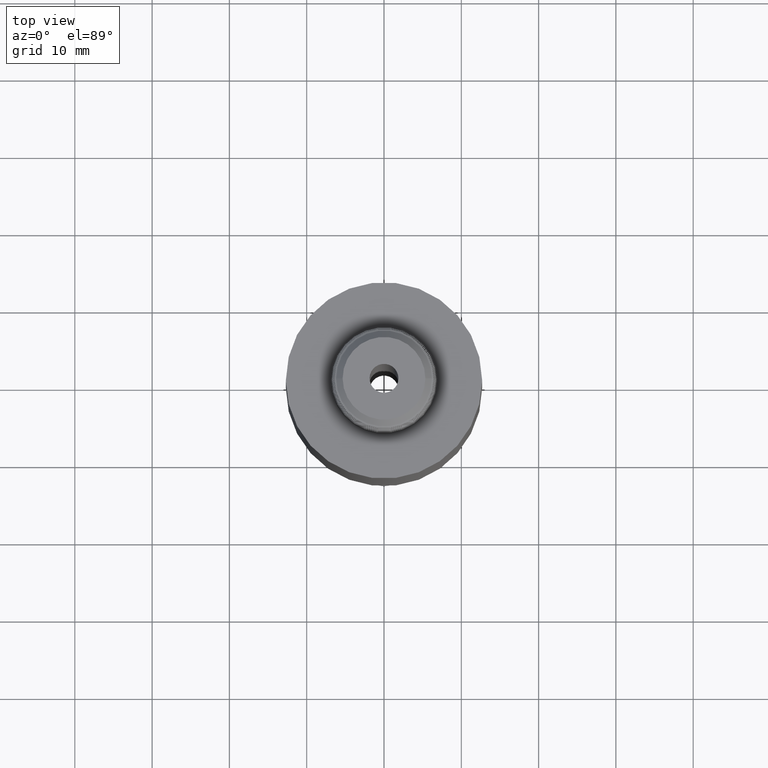
[diagram: clean part render]
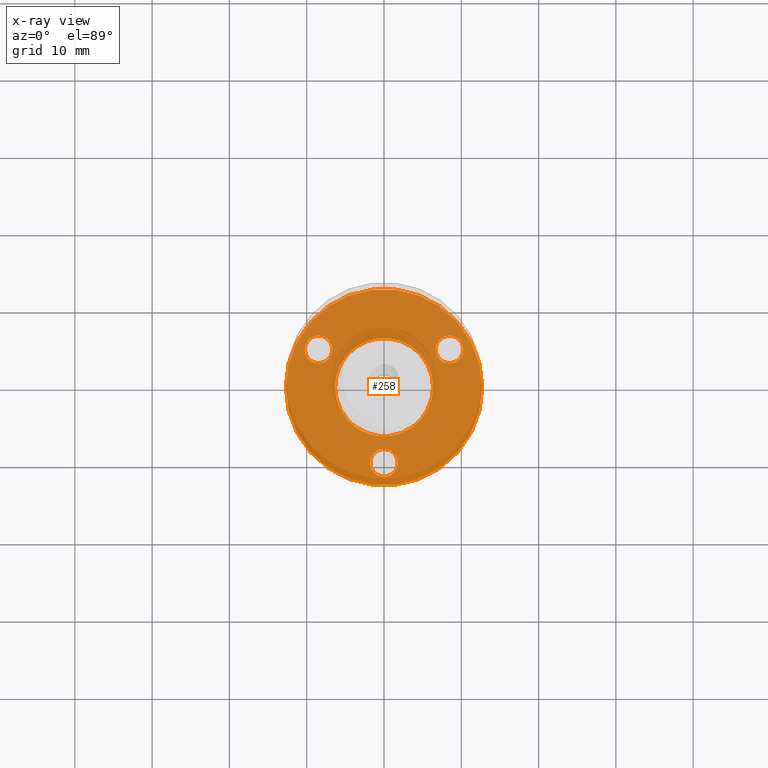
[diagram: x-ray — body ghosted, one internal face saturated and labeled with its STEP entity id]
A machine part, top view, then the same camera in x-ray: the body is ghosted and one INTERNAL B-rep face — a face not visible from any outside direction — is saturated and labeled: STEP entity #258.
In plain terms, the highlighted planar face has unit normal (0, 0, -1).
Its self-contained STEP definition (entity closure, byte-faithful):
#13 = ORIENTED_EDGE ( 'NONE', *, *, #3232, .F. ) ;
#20 = ORIENTED_EDGE ( 'NONE', *, *, #3368, .F. ) ;
#30 = ORIENTED_EDGE ( 'NONE', *, *, #3323, .F. ) ;
#36 = ORIENTED_EDGE ( 'NONE', *, *, #3348, .F. ) ;
#48 = ORIENTED_EDGE ( 'NONE', *, *, #1063, .T. ) ;
#54 = ORIENTED_EDGE ( 'NONE', *, *, #3342, .T. ) ;
#67 = ORIENTED_EDGE ( 'NONE', *, *, #3236, .F. ) ;
#68 = ORIENTED_EDGE ( 'NONE', *, *, #1085, .F. ) ;
#76 = ORIENTED_EDGE ( 'NONE', *, *, #3294, .F. ) ;
#78 = ORIENTED_EDGE ( 'NONE', *, *, #3220, .F. ) ;
#258 = ADVANCED_FACE ( 'NONE', ( #3124, #3182, #3197, #3178, #3179 ), #5942, .F. ) ;
#463 = CARTESIAN_POINT ( 'NONE',  ( 0.07025000000000000700, -0.3850000000000000100, -0.7579999999999999000 ) ) ;
#464 = CARTESIAN_POINT ( 'NONE',  ( -0.07025000000000000700, -0.3850000000000000100, -0.7579999999999999000 ) ) ;
#468 = DIRECTION ( 'NONE',  ( -0.0000000000000000000, -0.0000000000000000000, 1.000000000000000000 ) ) ;
#485 = DIRECTION ( 'NONE',  ( 1.000000000000000000, 0.0000000000000000000, 0.0000000000000000000 ) ) ;
#487 = CARTESIAN_POINT ( 'NONE',  ( 0.0000000000000000000, 0.0000000000000000000, -0.7579999999999999000 ) ) ;
#496 = DIRECTION ( 'NONE',  ( 1.000000000000000000, 0.0000000000000000000, 0.0000000000000000000 ) ) ;
#557 = DIRECTION ( 'NONE',  ( 1.000000000000000000, 0.0000000000000000000, 0.0000000000000000000 ) ) ;
#558 = CARTESIAN_POINT ( 'NONE',  ( -0.3334197804570101000, 0.1924999999999979500, -0.7579999999999999000 ) ) ;
#560 = DIRECTION ( 'NONE',  ( 0.0000000000000000000, 0.0000000000000000000, 1.000000000000000000 ) ) ;
#581 = DIRECTION ( 'NONE',  ( 0.0000000000000000000, 0.0000000000000000000, 1.000000000000000000 ) ) ;
#640 = CARTESIAN_POINT ( 'NONE',  ( -0.3334197804570101000, 0.1924999999999979500, -0.7579999999999999000 ) ) ;
#688 = CARTESIAN_POINT ( 'NONE',  ( 0.0000000000000000000, 0.0000000000000000000, -0.7579999999999999000 ) ) ;
#690 = DIRECTION ( 'NONE',  ( -0.0000000000000000000, -0.0000000000000000000, 1.000000000000000000 ) ) ;
#896 = DIRECTION ( 'NONE',  ( 1.000000000000000000, 0.0000000000000000000, 0.0000000000000000000 ) ) ;
#917 = CARTESIAN_POINT ( 'NONE',  ( 0.4999999999999997800, 0.0000000000000000000, -0.7579999999999999000 ) ) ;
#918 = CARTESIAN_POINT ( 'NONE',  ( -0.4999999999999997800, 6.123233995736763600E-017, -0.7579999999999999000 ) ) ;
#945 = CARTESIAN_POINT ( 'NONE',  ( -0.2497499999999998100, 3.058555380870512500E-017, -0.7579999999999999000 ) ) ;
#960 = CARTESIAN_POINT ( 'NONE',  ( 0.2631697804570086200, 0.1925000000000004800, -0.7579999999999999000 ) ) ;
#971 = CARTESIAN_POINT ( 'NONE',  ( 0.4036697804570086300, 0.1925000000000004800, -0.7579999999999999000 ) ) ;
#988 = CARTESIAN_POINT ( 'NONE',  ( -0.2631697804570100600, 0.1924999999999979500, -0.7579999999999999000 ) ) ;
#989 = CARTESIAN_POINT ( 'NONE',  ( -0.4036697804570100700, 0.1924999999999979500, -0.7579999999999999000 ) ) ;
#1049 = CARTESIAN_POINT ( 'NONE',  ( 0.2497499999999998100, 0.0000000000000000000, -0.7579999999999999000 ) ) ;
#1063 = EDGE_CURVE ( 'NONE', #3596, #3597, #4317, .T. ) ;
#1085 = EDGE_CURVE ( 'NONE', #3595, #3593, #4288, .T. ) ;
#1245 = EDGE_LOOP ( 'NONE', ( #13, #67 ) ) ;
#1323 = EDGE_LOOP ( 'NONE', ( #48, #54 ) ) ;
#1338 = EDGE_LOOP ( 'NONE', ( #30, #36 ) ) ;
#1345 = EDGE_LOOP ( 'NONE', ( #68, #20 ) ) ;
#1383 = EDGE_LOOP ( 'NONE', ( #78, #76 ) ) ;
#1475 = AXIS2_PLACEMENT_3D ( 'NONE', #5943, #5944, #5945 ) ;
#1567 = AXIS2_PLACEMENT_3D ( 'NONE', #2360, #2402, #2255 ) ;
#1575 = AXIS2_PLACEMENT_3D ( 'NONE', #2161, #2157, #2159 ) ;
#1699 = AXIS2_PLACEMENT_3D ( 'NONE', #2662, #2527, #2483 ) ;
#1707 = AXIS2_PLACEMENT_3D ( 'NONE', #2310, #2220, #2239 ) ;
#1709 = AXIS2_PLACEMENT_3D ( 'NONE', #2482, #2411, #2409 ) ;
#1740 = AXIS2_PLACEMENT_3D ( 'NONE', #2724, #1861, #2721 ) ;
#1755 = AXIS2_PLACEMENT_3D ( 'NONE', #558, #560, #557 ) ;
#1768 = AXIS2_PLACEMENT_3D ( 'NONE', #487, #468, #496 ) ;
#1772 = AXIS2_PLACEMENT_3D ( 'NONE', #640, #581, #485 ) ;
#1779 = AXIS2_PLACEMENT_3D ( 'NONE', #688, #690, #896 ) ;
#1861 = DIRECTION ( 'NONE',  ( 0.0000000000000000000, 0.0000000000000000000, 1.000000000000000000 ) ) ;
#2157 = DIRECTION ( 'NONE',  ( -0.0000000000000000000, -0.0000000000000000000, 1.000000000000000000 ) ) ;
#2159 = DIRECTION ( 'NONE',  ( 1.000000000000000000, 0.0000000000000000000, 0.0000000000000000000 ) ) ;
#2161 = CARTESIAN_POINT ( 'NONE',  ( 0.0000000000000000000, 0.0000000000000000000, -0.7579999999999999000 ) ) ;
#2220 = DIRECTION ( 'NONE',  ( 0.0000000000000000000, 0.0000000000000000000, 1.000000000000000000 ) ) ;
#2239 = DIRECTION ( 'NONE',  ( 1.000000000000000000, 0.0000000000000000000, 0.0000000000000000000 ) ) ;
#2255 = DIRECTION ( 'NONE',  ( 1.000000000000000000, 0.0000000000000000000, 0.0000000000000000000 ) ) ;
#2310 = CARTESIAN_POINT ( 'NONE',  ( 0.0000000000000000000, -0.3850000000000000100, -0.7579999999999999000 ) ) ;
#2360 = CARTESIAN_POINT ( 'NONE',  ( 0.0000000000000000000, 0.0000000000000000000, -0.7579999999999999000 ) ) ;
#2402 = DIRECTION ( 'NONE',  ( -0.0000000000000000000, -0.0000000000000000000, 1.000000000000000000 ) ) ;
#2409 = DIRECTION ( 'NONE',  ( 1.000000000000000000, 0.0000000000000000000, 0.0000000000000000000 ) ) ;
#2411 = DIRECTION ( 'NONE',  ( 0.0000000000000000000, 0.0000000000000000000, 1.000000000000000000 ) ) ;
#2482 = CARTESIAN_POINT ( 'NONE',  ( 0.0000000000000000000, -0.3850000000000000100, -0.7579999999999999000 ) ) ;
#2483 = DIRECTION ( 'NONE',  ( 1.000000000000000000, 0.0000000000000000000, 0.0000000000000000000 ) ) ;
#2527 = DIRECTION ( 'NONE',  ( 0.0000000000000000000, 0.0000000000000000000, 1.000000000000000000 ) ) ;
#2662 = CARTESIAN_POINT ( 'NONE',  ( 0.3334197804570086500, 0.1925000000000004800, -0.7579999999999999000 ) ) ;
#2721 = DIRECTION ( 'NONE',  ( 1.000000000000000000, 0.0000000000000000000, 0.0000000000000000000 ) ) ;
#2724 = CARTESIAN_POINT ( 'NONE',  ( 0.3334197804570086500, 0.1925000000000004800, -0.7579999999999999000 ) ) ;
#3124 = FACE_BOUND ( 'NONE', #1383, .T. ) ;
#3178 = FACE_BOUND ( 'NONE', #1345, .T. ) ;
#3179 = FACE_OUTER_BOUND ( 'NONE', #1323, .T. ) ;
#3182 = FACE_BOUND ( 'NONE', #1338, .T. ) ;
#3197 = FACE_BOUND ( 'NONE', #1245, .T. ) ;
#3220 = EDGE_CURVE ( 'NONE', #3616, #3619, #4873, .T. ) ;
#3232 = EDGE_CURVE ( 'NONE', #3604, #3605, #4888, .T. ) ;
#3236 = EDGE_CURVE ( 'NONE', #3605, #3604, #4894, .T. ) ;
#3294 = EDGE_CURVE ( 'NONE', #3619, #3616, #4978, .T. ) ;
#3323 = EDGE_CURVE ( 'NONE', #3608, #3609, #5016, .T. ) ;
#3342 = EDGE_CURVE ( 'NONE', #3597, #3596, #5040, .T. ) ;
#3348 = EDGE_CURVE ( 'NONE', #3609, #3608, #5048, .T. ) ;
#3368 = EDGE_CURVE ( 'NONE', #3593, #3595, #5080, .T. ) ;
#3593 = VERTEX_POINT ( 'NONE', #945 ) ;
#3595 = VERTEX_POINT ( 'NONE', #1049 ) ;
#3596 = VERTEX_POINT ( 'NONE', #917 ) ;
#3597 = VERTEX_POINT ( 'NONE', #918 ) ;
#3604 = VERTEX_POINT ( 'NONE', #463 ) ;
#3605 = VERTEX_POINT ( 'NONE', #464 ) ;
#3608 = VERTEX_POINT ( 'NONE', #988 ) ;
#3609 = VERTEX_POINT ( 'NONE', #989 ) ;
#3616 = VERTEX_POINT ( 'NONE', #971 ) ;
#3619 = VERTEX_POINT ( 'NONE', #960 ) ;
#4288 = CIRCLE ( 'NONE', #1575, 0.2497499999999998100 ) ;
#4317 = CIRCLE ( 'NONE', #1567, 0.4999999999999997800 ) ;
#4873 = CIRCLE ( 'NONE', #1699, 0.07025000000000002100 ) ;
#4888 = CIRCLE ( 'NONE', #1707, 0.07025000000000000700 ) ;
#4894 = CIRCLE ( 'NONE', #1709, 0.07025000000000000700 ) ;
#4978 = CIRCLE ( 'NONE', #1740, 0.07025000000000002100 ) ;
#5016 = CIRCLE ( 'NONE', #1755, 0.07025000000000002100 ) ;
#5040 = CIRCLE ( 'NONE', #1768, 0.4999999999999997800 ) ;
#5048 = CIRCLE ( 'NONE', #1772, 0.07025000000000002100 ) ;
#5080 = CIRCLE ( 'NONE', #1779, 0.2497499999999998100 ) ;
#5942 = PLANE ( 'NONE',  #1475 ) ;
#5943 = CARTESIAN_POINT ( 'NONE',  ( 0.0000000000000000000, 0.2497499999999998100, -0.7579999999999999000 ) ) ;
#5944 = DIRECTION ( 'NONE',  ( 0.0000000000000000000, 0.0000000000000000000, -1.000000000000000000 ) ) ;
#5945 = DIRECTION ( 'NONE',  ( -1.000000000000000000, 0.0000000000000000000, -0.0000000000000000000 ) ) ;